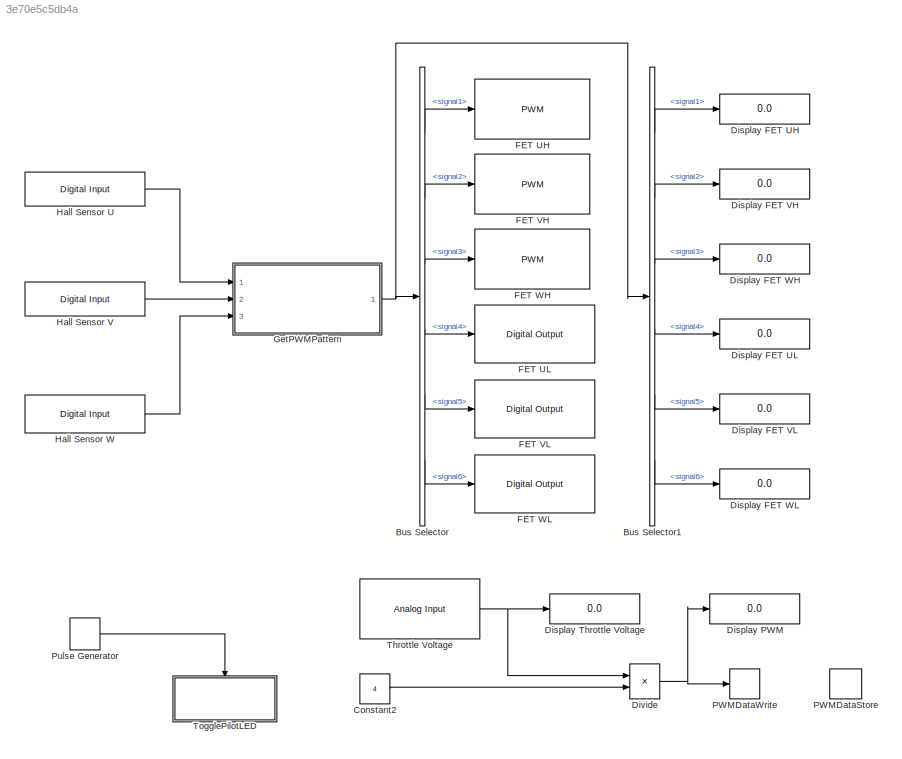
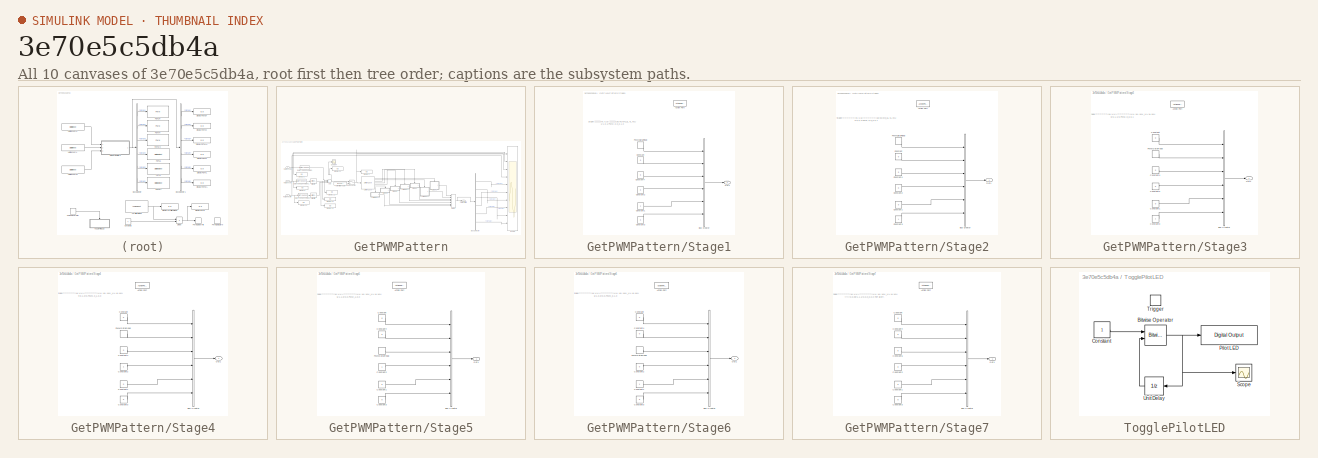
[diagram: thumbnail index - all 10 canvases of the model, root first then tree order]
MODEL slx_3e70e5c5db4a
KIND model
CONFIG AbsTol = auto
CONFIG EnableMultiTasking = on
CONFIG FixedStep = 0.002
CONFIG MaxStep = auto
CONFIG MinStep = auto
CONFIG RelTol = 1e-3
CONFIG SampleTimeConstraint = Unconstrained
CONFIG Solver = FixedStepDiscrete
CONFIG SolverName = FixedStepDiscrete
CONFIG StartTime = 0.0
CONFIG StopTime = inf
BLOCK [BusSelector] Bus Selector
  OutputAsBus = off
  OutputSignals = signal1,signal2,signal3,signal4,signal5,signal6
  Ports = [1, 6]
BLOCK [BusSelector] Bus Selector1
  OutputAsBus = off
  OutputSignals = signal1,signal2,signal3,signal4,signal5,signal6
  Ports = [1, 6]
BLOCK [Constant] Constant2
  Value = 4
BLOCK [Display] Display FET UH
  Decimation = 1
  Ports = [1]
BLOCK [Display] Display FET UL
  Decimation = 1
  Ports = [1]
BLOCK [Display] Display FET VH
  Decimation = 1
  Ports = [1]
BLOCK [Display] Display FET VL
  Decimation = 1
  Ports = [1]
BLOCK [Display] Display FET WH
  Decimation = 1
  Ports = [1]
BLOCK [Display] Display FET WL 
  Decimation = 1
  Ports = [1]
BLOCK [Display] Display PWM
  Decimation = 1
  Ports = [1]
BLOCK [Display] Display Throttle Voltage
  Decimation = 1
  Ports = [1]
BLOCK [Product] Divide
  InputSameDT = off
  Inputs = */
  OutDataTypeStr = Inherit: Inherit via internal rule
  Ports = [2, 1]
  RndMeth = Floor
  SaturateOnIntegerOverflow = off
BLOCK [Reference] FET UH  REF=arduinolib/PWM
  Ports = [1]
  SourceBlock = arduinolib/PWM
  SourceProductBaseCode = ARDUINO
  SourceProductName = Simulink Support Package for Arduino Hardware
  SourceType = Arduino PWM
BLOCK [Reference] FET UL  REF=arduinolib/Digital Output
  Ports = [1]
  SourceBlock = arduinolib/Digital Output
  SourceProductBaseCode = ARDUINO
  SourceProductName = Simulink Support Package for Arduino Hardware
  SourceType = Arduino Digital Output
BLOCK [Reference] FET VH  REF=arduinolib/PWM
  Ports = [1]
  SourceBlock = arduinolib/PWM
  SourceProductBaseCode = ARDUINO
  SourceProductName = Simulink Support Package for Arduino Hardware
  SourceType = Arduino PWM
BLOCK [Reference] FET VL  REF=arduinolib/Digital Output
  Ports = [1]
  SourceBlock = arduinolib/Digital Output
  SourceProductBaseCode = ARDUINO
  SourceProductName = Simulink Support Package for Arduino Hardware
  SourceType = Arduino Digital Output
BLOCK [Reference] FET WH  REF=arduinolib/PWM
  Ports = [1]
  SourceBlock = arduinolib/PWM
  SourceProductBaseCode = ARDUINO
  SourceProductName = Simulink Support Package for Arduino Hardware
  SourceType = Arduino PWM
BLOCK [Reference] FET WL  REF=arduinolib/Digital Output
  Ports = [1]
  SourceBlock = arduinolib/Digital Output
  SourceProductBaseCode = ARDUINO
  SourceProductName = Simulink Support Package for Arduino Hardware
  SourceType = Arduino Digital Output
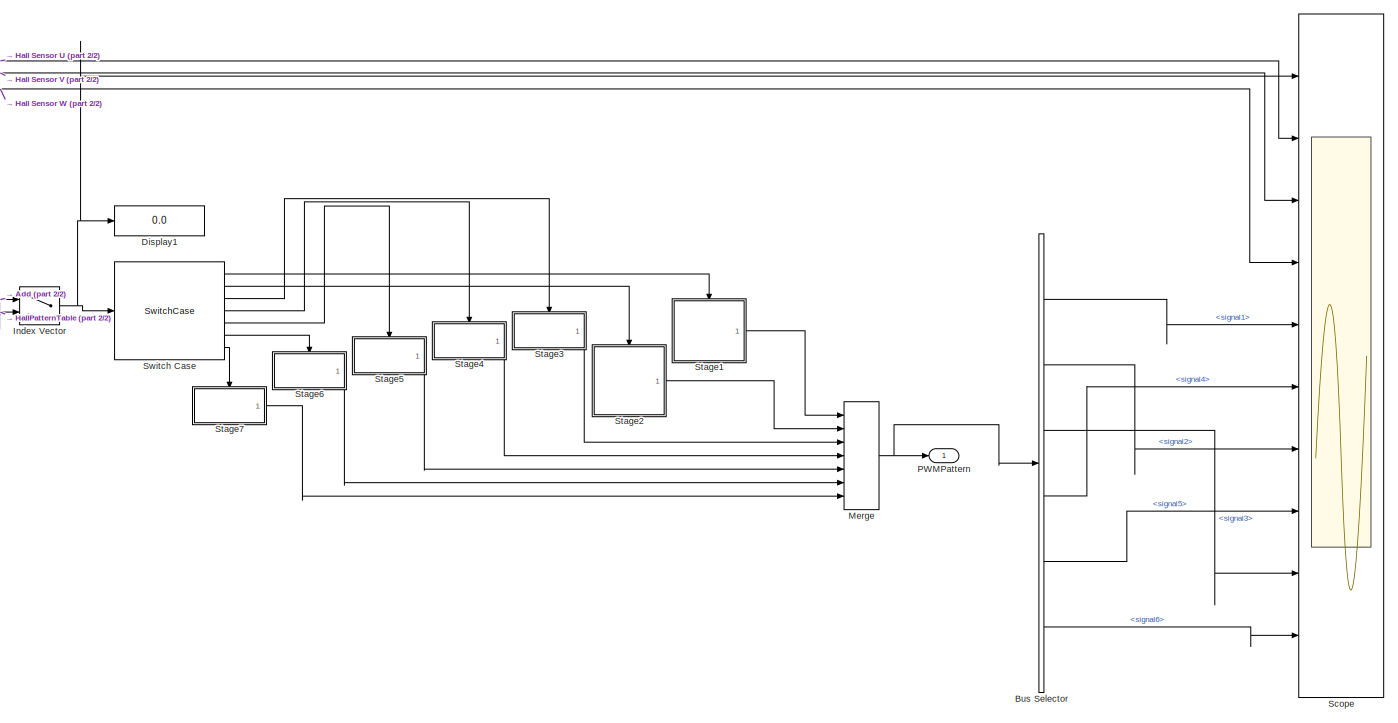
[diagram: GetPWMPattern - part 1/2, center side, full height]
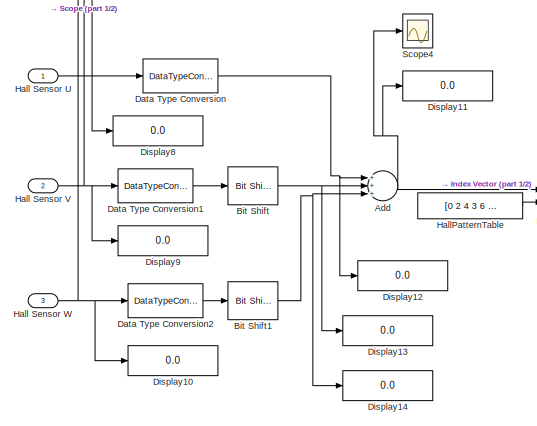
[diagram: GetPWMPattern - part 2/2, middle left region]
BLOCK [SubSystem] GetPWMPattern
  Ports = [3, 1]
  RequestExecContextInheritance = off
BLOCK [Sum] GetPWMPattern/Add
  InputSameDT = off
  Inputs = +++
  OutDataTypeStr = Inherit: Inherit via internal rule
  Ports = [3, 1]
  SaturateOnIntegerOverflow = off
BLOCK [Reference] GetPWMPattern/Bit Shift  REF=hdlsllib/Logic and Bit
Operations/Bit Shift
  Ports = [1, 1]
  SourceBlock = hdlsllib/Logic and Bit\nOperations/Bit Shift
  SourceProductBaseCode = SL
  SourceProductName = Simulink
  SourceType = Bit Shift
BLOCK [Reference] GetPWMPattern/Bit Shift1  REF=hdlsllib/Logic and Bit
Operations/Bit Shift
  Ports = [1, 1]
  SourceBlock = hdlsllib/Logic and Bit\nOperations/Bit Shift
  SourceProductBaseCode = SL
  SourceProductName = Simulink
  SourceType = Bit Shift
BLOCK [BusSelector] GetPWMPattern/Bus Selector
  OutputAsBus = off
  OutputSignals = signal1,signal2,signal3,signal4,signal5,signal6
  Ports = [1, 6]
BLOCK [DataTypeConversion] GetPWMPattern/Data Type Conversion
  OutDataTypeStr = uint8
  RndMeth = Floor
  SaturateOnIntegerOverflow = off
BLOCK [DataTypeConversion] GetPWMPattern/Data Type Conversion1
  OutDataTypeStr = uint8
  RndMeth = Floor
  SaturateOnIntegerOverflow = off
BLOCK [DataTypeConversion] GetPWMPattern/Data Type Conversion2
  OutDataTypeStr = uint8
  RndMeth = Floor
  SaturateOnIntegerOverflow = off
BLOCK [Display] GetPWMPattern/Display1
  Decimation = 1
  Ports = [1]
BLOCK [Display] GetPWMPattern/Display10
  Decimation = 1
  Ports = [1]
BLOCK [Display] GetPWMPattern/Display11
  Decimation = 1
  Ports = [1]
BLOCK [Display] GetPWMPattern/Display12
  Decimation = 1
  Ports = [1]
BLOCK [Display] GetPWMPattern/Display13
  Decimation = 1
  Ports = [1]
BLOCK [Display] GetPWMPattern/Display14
  Decimation = 1
  Ports = [1]
BLOCK [Display] GetPWMPattern/Display8
  Decimation = 1
  Ports = [1]
BLOCK [Display] GetPWMPattern/Display9
  Decimation = 1
  Ports = [1]
BLOCK [Inport] GetPWMPattern/Hall Sensor U
  IconDisplay = Port number
BLOCK [Inport] GetPWMPattern/Hall Sensor V
  IconDisplay = Port number
  Port = 2
BLOCK [Inport] GetPWMPattern/Hall Sensor W
  IconDisplay = Port number
  Port = 3
BLOCK [Constant] GetPWMPattern/HallPatternTable
  Value = [0 2 4 3 6 1 5 0]
BLOCK [MultiPortSwitch] GetPWMPattern/Index Vector
  DataPortOrder = Zero-based contiguous
  InputSameDT = off
  Inputs = 1
  Ports = [2, 1]
  SaturateOnIntegerOverflow = off
  zeroidx = on
BLOCK [Merge] GetPWMPattern/Merge
  Inputs = 7
  Ports = [7, 1]
BLOCK [Outport] GetPWMPattern/PWMPattern
  IconDisplay = Port number
BLOCK [Scope] GetPWMPattern/Scope
  Floating = off
  NumInputPorts = 10
  Ports = [10]
  ScopeSpecificationString = Simulink.scopes.TimeScopeBlockCfg('CurrentConfiguration', extmgr.ConfigurationSet(extmgr.Configuration('Core','General UI',true),extmgr.Configuration('Core','Source UI',true),extmgr.Configuration('Sources','WiredSimulink',true,'DataLoggingVariableName','ScopeData1'),extmgr.Configuration('Visuals','Time Domain',true,'SerializedDisplays',{struct('MinYLimReal','0.375','MaxYLimReal','6.625','YLabelRea...<+7499ch>
BLOCK [Scope] GetPWMPattern/Scope4
  Floating = off
  NumInputPorts = 1
  Ports = [1]
  ScopeSpecificationString = Simulink.scopes.TimeScopeBlockCfg('CurrentConfiguration', extmgr.ConfigurationSet(extmgr.Configuration('Core','General UI',true),extmgr.Configuration('Core','Source UI',true),extmgr.Configuration('Sources','WiredSimulink',true,'DataLoggingVariableName','ScopeData2'),extmgr.Configuration('Visuals','Time Domain',true,'SerializedDisplays',{struct('MinYLimReal','-1.00000','MaxYLimReal','1.00000','YLab...<+1490ch>
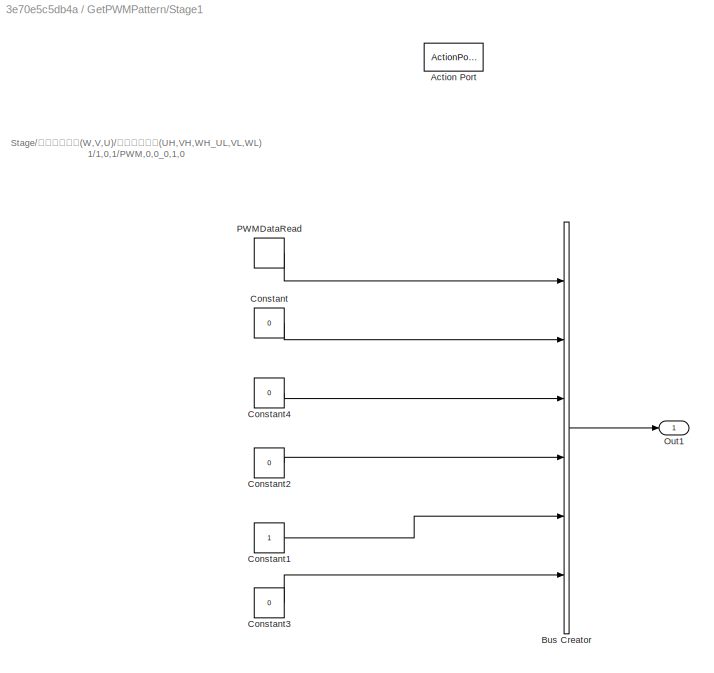
BLOCK [SubSystem] GetPWMPattern/Stage1
  Ports = [0, 1, 0, 0, 0, 0, 0, 1]
  RequestExecContextInheritance = off
  TreatAsAtomicUnit = on
BLOCK [ActionPort] GetPWMPattern/Stage1/Action Port
  ActionPortLabel = case [ 1 ]:
BLOCK [BusCreator] GetPWMPattern/Stage1/Bus Creator
  DisplayOption = bar
  InheritFromInputs = on
  Inputs = 6
  Ports = [6, 1]
BLOCK [Constant] GetPWMPattern/Stage1/Constant
  Value = 0
BLOCK [Constant] GetPWMPattern/Stage1/Constant1
BLOCK [Constant] GetPWMPattern/Stage1/Constant2
  Value = 0
BLOCK [Constant] GetPWMPattern/Stage1/Constant3
  Value = 0
BLOCK [Constant] GetPWMPattern/Stage1/Constant4
  Value = 0
BLOCK [Outport] GetPWMPattern/Stage1/Out1
  IconDisplay = Port number
  InitialOutput = [0,0,0,0,0,0]
BLOCK [DataStoreRead] GetPWMPattern/Stage1/PWMDataRead
  Ports = [0, 1]
BLOCK [SubSystem] GetPWMPattern/Stage2
  Ports = [0, 1, 0, 0, 0, 0, 0, 1]
  RequestExecContextInheritance = off
  TreatAsAtomicUnit = on
BLOCK [ActionPort] GetPWMPattern/Stage2/Action Port
  ActionPortLabel = case [ 2 ]:
BLOCK [BusCreator] GetPWMPattern/Stage2/Bus Creator
  DisplayOption = bar
  InheritFromInputs = on
  Inputs = 6
  Ports = [6, 1]
BLOCK [Constant] GetPWMPattern/Stage2/Constant
  Value = 0
BLOCK [Constant] GetPWMPattern/Stage2/Constant1
  Value = 0
BLOCK [Constant] GetPWMPattern/Stage2/Constant2
  Value = 0
BLOCK [Constant] GetPWMPattern/Stage2/Constant3
BLOCK [Constant] GetPWMPattern/Stage2/Constant4
  Value = 0
BLOCK [Outport] GetPWMPattern/Stage2/Out1
  IconDisplay = Port number
  InitialOutput = [0,0,0,0,0,0]
BLOCK [DataStoreRead] GetPWMPattern/Stage2/PWMDataRead
  Ports = [0, 1]
BLOCK [SubSystem] GetPWMPattern/Stage3
  Ports = [0, 1, 0, 0, 0, 0, 0, 1]
  RequestExecContextInheritance = off
  TreatAsAtomicUnit = on
BLOCK [ActionPort] GetPWMPattern/Stage3/Action Port
  ActionPortLabel = case [ 3 ]:
BLOCK [BusCreator] GetPWMPattern/Stage3/Bus Creator
  DisplayOption = bar
  InheritFromInputs = on
  Inputs = 6
  Ports = [6, 1]
BLOCK [Constant] GetPWMPattern/Stage3/Constant
  Value = 0
BLOCK [Constant] GetPWMPattern/Stage3/Constant1
  Value = 0
BLOCK [Constant] GetPWMPattern/Stage3/Constant2
  Value = 0
BLOCK [Constant] GetPWMPattern/Stage3/Constant3
BLOCK [Constant] GetPWMPattern/Stage3/Constant4
  Value = 0
BLOCK [Outport] GetPWMPattern/Stage3/Out1
  IconDisplay = Port number
  InitialOutput = [0,0,0,0,0,0]
BLOCK [DataStoreRead] GetPWMPattern/Stage3/PWMDataRead
  Ports = [0, 1]
BLOCK [SubSystem] GetPWMPattern/Stage4
  Ports = [0, 1, 0, 0, 0, 0, 0, 1]
  RequestExecContextInheritance = off
  TreatAsAtomicUnit = on
BLOCK [ActionPort] GetPWMPattern/Stage4/Action Port
  ActionPortLabel = case [ 4 ]:
BLOCK [BusCreator] GetPWMPattern/Stage4/Bus Creator
  DisplayOption = bar
  InheritFromInputs = on
  Inputs = 6
  Ports = [6, 1]
BLOCK [Constant] GetPWMPattern/Stage4/Constant
  Value = 0
BLOCK [Constant] GetPWMPattern/Stage4/Constant1
  Value = 0
BLOCK [Constant] GetPWMPattern/Stage4/Constant2
BLOCK [Constant] GetPWMPattern/Stage4/Constant3
  Value = 0
BLOCK [Constant] GetPWMPattern/Stage4/Constant4
  Value = 0
BLOCK [Outport] GetPWMPattern/Stage4/Out1
  IconDisplay = Port number
  InitialOutput = [0,0,0,0,0,0]
BLOCK [DataStoreRead] GetPWMPattern/Stage4/PWMDataRead
  Ports = [0, 1]
BLOCK [SubSystem] GetPWMPattern/Stage5
  Ports = [0, 1, 0, 0, 0, 0, 0, 1]
  RequestExecContextInheritance = off
  TreatAsAtomicUnit = on
BLOCK [ActionPort] GetPWMPattern/Stage5/Action Port
  ActionPortLabel = case [ 5 ]:
BLOCK [BusCreator] GetPWMPattern/Stage5/Bus Creator
  DisplayOption = bar
  InheritFromInputs = on
  Inputs = 6
  Ports = [6, 1]
BLOCK [Constant] GetPWMPattern/Stage5/Constant
  Value = 0
BLOCK [Constant] GetPWMPattern/Stage5/Constant1
  Value = 0
BLOCK [Constant] GetPWMPattern/Stage5/Constant2
BLOCK [Constant] GetPWMPattern/Stage5/Constant3
  Value = 0
BLOCK [Constant] GetPWMPattern/Stage5/Constant4
  Value = 0
BLOCK [Outport] GetPWMPattern/Stage5/Out1
  IconDisplay = Port number
  InitialOutput = [0,0,0,0,0,0]
BLOCK [DataStoreRead] GetPWMPattern/Stage5/PWMDataRead
  Ports = [0, 1]
BLOCK [SubSystem] GetPWMPattern/Stage6
  Ports = [0, 1, 0, 0, 0, 0, 0, 1]
  RequestExecContextInheritance = off
  TreatAsAtomicUnit = on
BLOCK [ActionPort] GetPWMPattern/Stage6/Action Port
  ActionPortLabel = case [ 6 ]:
BLOCK [BusCreator] GetPWMPattern/Stage6/Bus Creator
  DisplayOption = bar
  InheritFromInputs = on
  Inputs = 6
  Ports = [6, 1]
BLOCK [Constant] GetPWMPattern/Stage6/Constant
  Value = 0
BLOCK [Constant] GetPWMPattern/Stage6/Constant1
BLOCK [Constant] GetPWMPattern/Stage6/Constant2
  Value = 0
BLOCK [Constant] GetPWMPattern/Stage6/Constant3
  Value = 0
BLOCK [Constant] GetPWMPattern/Stage6/Constant4
  Value = 0
BLOCK [Outport] GetPWMPattern/Stage6/Out1
  IconDisplay = Port number
  InitialOutput = [0,0,0,0,0,0]
BLOCK [DataStoreRead] GetPWMPattern/Stage6/PWMDataRead
  Ports = [0, 1]
BLOCK [SubSystem] GetPWMPattern/Stage7
  Ports = [0, 1, 0, 0, 0, 0, 0, 1]
  RequestExecContextInheritance = off
  TreatAsAtomicUnit = on
BLOCK [ActionPort] GetPWMPattern/Stage7/Action Port
  ActionPortLabel = default:
BLOCK [BusCreator] GetPWMPattern/Stage7/Bus Creator
  DisplayOption = bar
  InheritFromInputs = on
  Inputs = 6
  Ports = [6, 1]
BLOCK [Constant] GetPWMPattern/Stage7/Constant
  Value = 0
BLOCK [Constant] GetPWMPattern/Stage7/Constant1
  Value = 0
BLOCK [Constant] GetPWMPattern/Stage7/Constant2
  Value = 0
BLOCK [Constant] GetPWMPattern/Stage7/Constant3
  Value = 0
BLOCK [Constant] GetPWMPattern/Stage7/Constant4
  Value = 0
BLOCK [Constant] GetPWMPattern/Stage7/Constant5
  Value = 0
BLOCK [Outport] GetPWMPattern/Stage7/Out1
  IconDisplay = Port number
  InitialOutput = [0,0,0,0,0,0]
BLOCK [SwitchCase] GetPWMPattern/Switch Case
  CaseConditions = {1,2,3,4,5,6}
  Ports = [1, 7]
BLOCK [Reference] Hall Sensor U  REF=arduinolib/Digital Input
  Ports = [0, 1]
  SourceBlock = arduinolib/Digital Input
  SourceProductBaseCode = ARDUINO
  SourceProductName = Simulink Support Package for Arduino Hardware
  SourceType = Arduino Digital Input
BLOCK [Reference] Hall Sensor V  REF=arduinolib/Digital Input
  Ports = [0, 1]
  SourceBlock = arduinolib/Digital Input
  SourceProductBaseCode = ARDUINO
  SourceProductName = Simulink Support Package for Arduino Hardware
  SourceType = Arduino Digital Input
BLOCK [Reference] Hall Sensor W  REF=arduinolib/Digital Input
  Ports = [0, 1]
  SourceBlock = arduinolib/Digital Input
  SourceProductBaseCode = ARDUINO
  SourceProductName = Simulink Support Package for Arduino Hardware
  SourceType = Arduino Digital Input
BLOCK [DataStoreMemory] PWMDataStore
  ReadBeforeWriteMsg = warning
  ShowAdditionalParam = off
  WriteAfterReadMsg = warning
  WriteAfterWriteMsg = warning
BLOCK [DataStoreWrite] PWMDataWrite
  Ports = [1]
BLOCK [DiscretePulseGenerator] Pulse Generator
  Period = 1
  Ports = [0, 1]
  PulseType = Time based
  PulseWidth = 50
BLOCK [Reference] Throttle Voltage  REF=arduinolib/Analog Input
  Ports = [0, 1]
  SourceBlock = arduinolib/Analog Input
  SourceProductBaseCode = ARDUINO
  SourceProductName = Simulink Support Package for Arduino Hardware
  SourceType = Arduino Analog Input
BLOCK [SubSystem] TogglePilotLED
  Ports = [0, 0, 0, 1]
  RequestExecContextInheritance = off
  TreatAsAtomicUnit = on
BLOCK [Reference] TogglePilotLED/Bitwise Operator  REF=simulink/Logic and Bit
Operations/Bitwise
Operator
  Ports = [2, 1]
  SourceBlock = simulink/Logic and Bit\nOperations/Bitwise\nOperator
  SourceProductBaseCode = SL
  SourceProductName = Simulink
  SourceType = Bitwise Operator
BLOCK [Constant] TogglePilotLED/Constant
  OutDataTypeStr = uint8
BLOCK [Reference] TogglePilotLED/Pilot LED  REF=arduinolib/Digital Output
  Ports = [1]
  SourceBlock = arduinolib/Digital Output
  SourceProductBaseCode = ARDUINO
  SourceProductName = Simulink Support Package for Arduino Hardware
  SourceType = Arduino Digital Output
BLOCK [Scope] TogglePilotLED/Scope
  Floating = off
  NumInputPorts = 1
  Ports = [1]
  ScopeSpecificationString = Simulink.scopes.TimeScopeBlockCfg('CurrentConfiguration', extmgr.ConfigurationSet(extmgr.Configuration('Core','General UI',true),extmgr.Configuration('Core','Source UI',true),extmgr.Configuration('Sources','WiredSimulink',true,'DataLoggingVariableName','ScopeData2'),extmgr.Configuration('Visuals','Time Domain',true,'SerializedDisplays',{struct('MinYLimReal','0.9','MaxYLimReal','1.1','YLabelReal','...<+1366ch>
BLOCK [TriggerPort] TogglePilotLED/Trigger
  Ports = []
  StatesWhenEnabling = held
  VariantControl = Variant
BLOCK [UnitDelay] TogglePilotLED/Unit Delay
  HasFrameUpgradeWarning = on
  SampleTime = -1
ANNOTATION GetPWMPattern/Stage1: Stage/ホールセンサ(W,V,U)/通電パターン(UH,VH,WH_UL,VL,WL) 1/1,0,1/PWM,0,0_0,1,0
ANNOTATION GetPWMPattern/Stage2: Stage/ホールセンサ(W,V,U)/通電パターン(UH,VH,WH_UL,VL,WL) 2/0,0,1/PWM,0,0_0,0,1
ANNOTATION GetPWMPattern/Stage3: Stage/ホールセンサ(W,V,U)/通電パターン(UH,VH,WH_UL,VL,WL) 3/0,1,1/0,PWM,0_0,0,1
ANNOTATION GetPWMPattern/Stage4: Stage/ホールセンサ(W,V,U)/通電パターン(UH,VH,WH_UL,VL,WL) 4/0,1,0/0,PWM,0_1,0,0
ANNOTATION GetPWMPattern/Stage5: Stage/ホールセンサ(W,V,U)/通電パターン(UH,VH,WH_UL,VL,WL) 5/1,1,0/0,0,PWM_1,0,0
ANNOTATION GetPWMPattern/Stage6: Stage/ホールセンサ(W,V,U)/通電パターン(UH,VH,WH_UL,VL,WL) 6/1,0,0/0,0,PWM_0,1,0
ANNOTATION GetPWMPattern/Stage7: Stage/ホールセンサ(W,V,U)/通電パターン(UH,VH,WH_UL,VL,WL) 異常/0,0,0or1,1,1/0,0,0_0,0,0 FET all off.
LINE Bus Selector1:1 -> Display FET UH:1
LINE Bus Selector1:2 -> Display FET VH:1
LINE Bus Selector1:3 -> Display FET WH:1
LINE Bus Selector1:4 -> Display FET UL:1
LINE Bus Selector1:5 -> Display FET VL:1
LINE Bus Selector1:6 -> Display FET WL :1
LINE Bus Selector:1 -> FET UH:1
LINE Bus Selector:2 -> FET VH:1
LINE Bus Selector:3 -> FET WH:1
LINE Bus Selector:4 -> FET UL:1
LINE Bus Selector:5 -> FET VL:1
LINE Bus Selector:6 -> FET WL:1
LINE Constant2:1 -> Divide:2
NET Divide:1 -> Display PWM:1, PWMDataWrite:1
NET GetPWMPattern/Add:1 -> GetPWMPattern/Display11:1, GetPWMPattern/Index Vector:1, GetPWMPattern/Scope4:1
NET GetPWMPattern/Bit Shift1:1 -> GetPWMPattern/Add:3, GetPWMPattern/Display14:1
NET GetPWMPattern/Bit Shift:1 -> GetPWMPattern/Add:2, GetPWMPattern/Display13:1
LINE GetPWMPattern/Bus Selector:1 -> GetPWMPattern/Scope:5
LINE GetPWMPattern/Bus Selector:2 -> GetPWMPattern/Scope:7
LINE GetPWMPattern/Bus Selector:3 -> GetPWMPattern/Scope:9
LINE GetPWMPattern/Bus Selector:4 -> GetPWMPattern/Scope:6
LINE GetPWMPattern/Bus Selector:5 -> GetPWMPattern/Scope:8
LINE GetPWMPattern/Bus Selector:6 -> GetPWMPattern/Scope:10
LINE GetPWMPattern/Data Type Conversion1:1 -> GetPWMPattern/Bit Shift:1
LINE GetPWMPattern/Data Type Conversion2:1 -> GetPWMPattern/Bit Shift1:1
NET GetPWMPattern/Data Type Conversion:1 -> GetPWMPattern/Add:1, GetPWMPattern/Display12:1
NET GetPWMPattern/Hall Sensor U:1 -> GetPWMPattern/Data Type Conversion:1, GetPWMPattern/Display8:1, GetPWMPattern/Scope:2
NET GetPWMPattern/Hall Sensor V:1 -> GetPWMPattern/Data Type Conversion1:1, GetPWMPattern/Display9:1, GetPWMPattern/Scope:3
NET GetPWMPattern/Hall Sensor W:1 -> GetPWMPattern/Data Type Conversion2:1, GetPWMPattern/Display10:1, GetPWMPattern/Scope:4
LINE GetPWMPattern/HallPatternTable:1 -> GetPWMPattern/Index Vector:2
NET GetPWMPattern/Index Vector:1 -> GetPWMPattern/Display1:1, GetPWMPattern/Scope:1, GetPWMPattern/Switch Case:1
NET GetPWMPattern/Merge:1 -> GetPWMPattern/Bus Selector:1, GetPWMPattern/PWMPattern:1
LINE GetPWMPattern/Stage1/Bus Creator:1 -> GetPWMPattern/Stage1/Out1:1
LINE GetPWMPattern/Stage1/Constant1:1 -> GetPWMPattern/Stage1/Bus Creator:5
LINE GetPWMPattern/Stage1/Constant2:1 -> GetPWMPattern/Stage1/Bus Creator:4
LINE GetPWMPattern/Stage1/Constant3:1 -> GetPWMPattern/Stage1/Bus Creator:6
LINE GetPWMPattern/Stage1/Constant4:1 -> GetPWMPattern/Stage1/Bus Creator:3
LINE GetPWMPattern/Stage1/Constant:1 -> GetPWMPattern/Stage1/Bus Creator:2
LINE GetPWMPattern/Stage1/PWMDataRead:1 -> GetPWMPattern/Stage1/Bus Creator:1
LINE GetPWMPattern/Stage1:1 -> GetPWMPattern/Merge:1
LINE GetPWMPattern/Stage2/Bus Creator:1 -> GetPWMPattern/Stage2/Out1:1
LINE GetPWMPattern/Stage2/Constant1:1 -> GetPWMPattern/Stage2/Bus Creator:5
LINE GetPWMPattern/Stage2/Constant2:1 -> GetPWMPattern/Stage2/Bus Creator:4
LINE GetPWMPattern/Stage2/Constant3:1 -> GetPWMPattern/Stage2/Bus Creator:6
LINE GetPWMPattern/Stage2/Constant4:1 -> GetPWMPattern/Stage2/Bus Creator:3
LINE GetPWMPattern/Stage2/Constant:1 -> GetPWMPattern/Stage2/Bus Creator:2
LINE GetPWMPattern/Stage2/PWMDataRead:1 -> GetPWMPattern/Stage2/Bus Creator:1
LINE GetPWMPattern/Stage2:1 -> GetPWMPattern/Merge:2
LINE GetPWMPattern/Stage3/Bus Creator:1 -> GetPWMPattern/Stage3/Out1:1
LINE GetPWMPattern/Stage3/Constant1:1 -> GetPWMPattern/Stage3/Bus Creator:5
LINE GetPWMPattern/Stage3/Constant2:1 -> GetPWMPattern/Stage3/Bus Creator:4
LINE GetPWMPattern/Stage3/Constant3:1 -> GetPWMPattern/Stage3/Bus Creator:6
LINE GetPWMPattern/Stage3/Constant4:1 -> GetPWMPattern/Stage3/Bus Creator:3
LINE GetPWMPattern/Stage3/Constant:1 -> GetPWMPattern/Stage3/Bus Creator:1
LINE GetPWMPattern/Stage3/PWMDataRead:1 -> GetPWMPattern/Stage3/Bus Creator:2
LINE GetPWMPattern/Stage3:1 -> GetPWMPattern/Merge:3
LINE GetPWMPattern/Stage4/Bus Creator:1 -> GetPWMPattern/Stage4/Out1:1
LINE GetPWMPattern/Stage4/Constant1:1 -> GetPWMPattern/Stage4/Bus Creator:5
LINE GetPWMPattern/Stage4/Constant2:1 -> GetPWMPattern/Stage4/Bus Creator:4
LINE GetPWMPattern/Stage4/Constant3:1 -> GetPWMPattern/Stage4/Bus Creator:6
LINE GetPWMPattern/Stage4/Constant4:1 -> GetPWMPattern/Stage4/Bus Creator:3
LINE GetPWMPattern/Stage4/Constant:1 -> GetPWMPattern/Stage4/Bus Creator:1
LINE GetPWMPattern/Stage4/PWMDataRead:1 -> GetPWMPattern/Stage4/Bus Creator:2
LINE GetPWMPattern/Stage4:1 -> GetPWMPattern/Merge:4
LINE GetPWMPattern/Stage5/Bus Creator:1 -> GetPWMPattern/Stage5/Out1:1
LINE GetPWMPattern/Stage5/Constant1:1 -> GetPWMPattern/Stage5/Bus Creator:5
LINE GetPWMPattern/Stage5/Constant2:1 -> GetPWMPattern/Stage5/Bus Creator:4
LINE GetPWMPattern/Stage5/Constant3:1 -> GetPWMPattern/Stage5/Bus Creator:6
LINE GetPWMPattern/Stage5/Constant4:1 -> GetPWMPattern/Stage5/Bus Creator:2
LINE GetPWMPattern/Stage5/Constant:1 -> GetPWMPattern/Stage5/Bus Creator:1
LINE GetPWMPattern/Stage5/PWMDataRead:1 -> GetPWMPattern/Stage5/Bus Creator:3
LINE GetPWMPattern/Stage5:1 -> GetPWMPattern/Merge:5
LINE GetPWMPattern/Stage6/Bus Creator:1 -> GetPWMPattern/Stage6/Out1:1
LINE GetPWMPattern/Stage6/Constant1:1 -> GetPWMPattern/Stage6/Bus Creator:5
LINE GetPWMPattern/Stage6/Constant2:1 -> GetPWMPattern/Stage6/Bus Creator:4
LINE GetPWMPattern/Stage6/Constant3:1 -> GetPWMPattern/Stage6/Bus Creator:6
LINE GetPWMPattern/Stage6/Constant4:1 -> GetPWMPattern/Stage6/Bus Creator:2
LINE GetPWMPattern/Stage6/Constant:1 -> GetPWMPattern/Stage6/Bus Creator:1
LINE GetPWMPattern/Stage6/PWMDataRead:1 -> GetPWMPattern/Stage6/Bus Creator:3
LINE GetPWMPattern/Stage6:1 -> GetPWMPattern/Merge:6
LINE GetPWMPattern/Stage7/Bus Creator:1 -> GetPWMPattern/Stage7/Out1:1
LINE GetPWMPattern/Stage7/Constant1:1 -> GetPWMPattern/Stage7/Bus Creator:5
LINE GetPWMPattern/Stage7/Constant2:1 -> GetPWMPattern/Stage7/Bus Creator:4
LINE GetPWMPattern/Stage7/Constant3:1 -> GetPWMPattern/Stage7/Bus Creator:6
LINE GetPWMPattern/Stage7/Constant4:1 -> GetPWMPattern/Stage7/Bus Creator:2
LINE GetPWMPattern/Stage7/Constant5:1 -> GetPWMPattern/Stage7/Bus Creator:3
LINE GetPWMPattern/Stage7/Constant:1 -> GetPWMPattern/Stage7/Bus Creator:1
LINE GetPWMPattern/Stage7:1 -> GetPWMPattern/Merge:7
LINE GetPWMPattern/Switch Case:1 -> GetPWMPattern/Stage1:ifaction
LINE GetPWMPattern/Switch Case:2 -> GetPWMPattern/Stage2:ifaction
LINE GetPWMPattern/Switch Case:3 -> GetPWMPattern/Stage3:ifaction
LINE GetPWMPattern/Switch Case:4 -> GetPWMPattern/Stage4:ifaction
LINE GetPWMPattern/Switch Case:5 -> GetPWMPattern/Stage5:ifaction
LINE GetPWMPattern/Switch Case:6 -> GetPWMPattern/Stage6:ifaction
LINE GetPWMPattern/Switch Case:7 -> GetPWMPattern/Stage7:ifaction
NET GetPWMPattern:1 -> Bus Selector1:1, Bus Selector:1
LINE Hall Sensor U:1 -> GetPWMPattern:1
LINE Hall Sensor V:1 -> GetPWMPattern:2
LINE Hall Sensor W:1 -> GetPWMPattern:3
LINE Pulse Generator:1 -> TogglePilotLED:trigger
NET Throttle Voltage:1 -> Display Throttle Voltage:1, Divide:1
NET TogglePilotLED/Bitwise Operator:1 -> TogglePilotLED/Pilot LED:1, TogglePilotLED/Scope:1, TogglePilotLED/Unit Delay:1
LINE TogglePilotLED/Constant:1 -> TogglePilotLED/Bitwise Operator:1
LINE TogglePilotLED/Unit Delay:1 -> TogglePilotLED/Bitwise Operator:2
note: NET lines group one-source signal fan-out (src -> all destinations, sorted); 1:1 wires keep LINE
